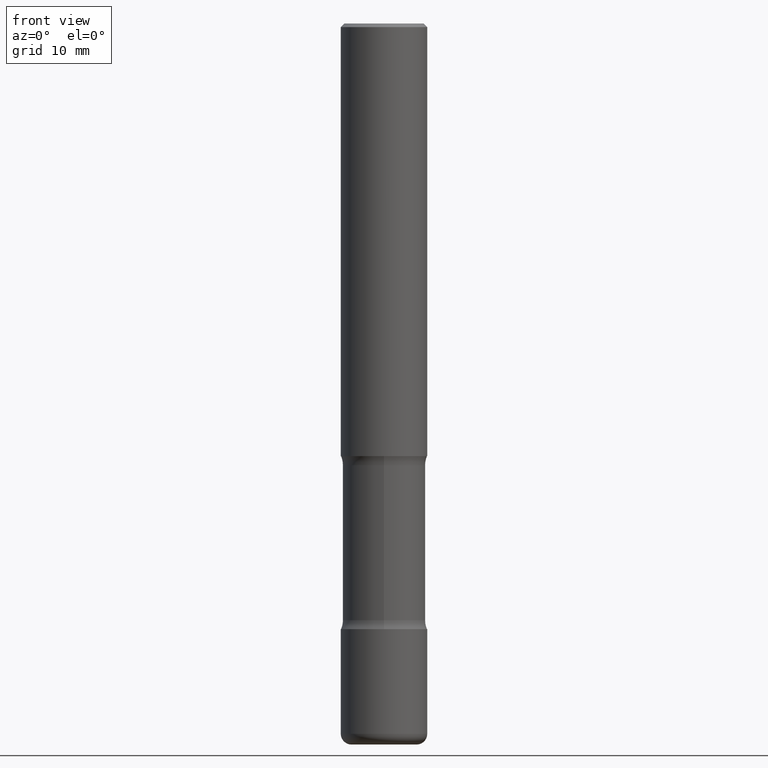
[diagram: clean part render]
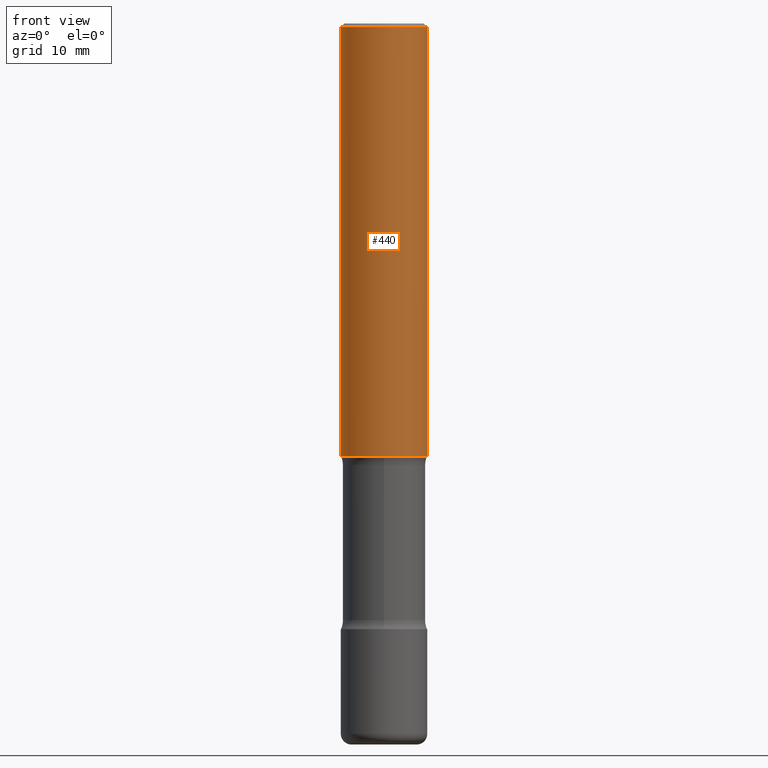
[diagram: same view with one face highlighted and labeled with its STEP entity id]
A machine part, front view. The second image highlights one B-rep face of the part: STEP entity #440.
In plain terms, the highlighted cylindrical surface (partial cylindrical patch) has radius 5.9995 mm, axis along (-0, 0, 1).
Its self-contained STEP definition (entity closure, byte-faithful):
#5 = CARTESIAN_POINT ( 'NONE',  ( 0.2361999999999999933, -1.649375784469496131E-15, 1.151752954443000088E-29 ) ) ;
#13 = EDGE_CURVE ( 'NONE', #264, #363, #218, .T. ) ;
#27 = VECTOR ( 'NONE', #36, 39.37007874015748143 ) ;
#28 = CARTESIAN_POINT ( 'NONE',  ( -0.2361999999999998545, 1.579546157692632044E-15, -0.02000000000000006981 ) ) ;
#33 = CARTESIAN_POINT ( 'NONE',  ( 0.2361999999999998545, -1.690279253850497785E-15, -0.02000000000000006981 ) ) ;
#36 = DIRECTION ( 'NONE',  ( -2.445468806185136877E-29, 3.491481338843145188E-15, 1.000000000000000000 ) ) ;
#55 = CARTESIAN_POINT ( 'NONE',  ( 4.890937612370289799E-31, -6.982962677686315028E-17, -0.02000000000000006981 ) ) ;
#92 = CARTESIAN_POINT ( 'NONE',  ( 0.2362000000000001598, -9.896953003084776152E-15, -2.362200000000000077 ) ) ;
#101 = ORIENTED_EDGE ( 'NONE', *, *, #235, .F. ) ;
#117 = ORIENTED_EDGE ( 'NONE', *, *, #496, .F. ) ;
#153 = DIRECTION ( 'NONE',  ( 1.000000000000000000, -6.982962677686268288E-15, 0.000000000000000000 ) ) ;
#165 = DIRECTION ( 'NONE',  ( 1.000000000000000000, -6.982962677686266711E-15, 4.876176775795936353E-29 ) ) ;
#169 = ORIENTED_EDGE ( 'NONE', *, *, #13, .T. ) ;
#172 = CARTESIAN_POINT ( 'NONE',  ( 0.000000000000000000, 0.000000000000000000, 0.000000000000000000 ) ) ;
#179 = DIRECTION ( 'NONE',  ( -2.445468806185136597E-29, 3.491481338843145583E-15, 1.000000000000000000 ) ) ;
#186 = DIRECTION ( 'NONE',  ( 1.000000000000000000, -6.982962677686266711E-15, 0.000000000000000000 ) ) ;
#205 = CIRCLE ( 'NONE', #522, 0.2362000000000001598 ) ;
#217 = DIRECTION ( 'NONE',  ( -2.445468806185136597E-29, 3.491481338843145583E-15, 1.000000000000000000 ) ) ;
#218 = LINE ( 'NONE', #5, #465 ) ;
#219 = FACE_OUTER_BOUND ( 'NONE', #283, .T. ) ;
#235 = EDGE_CURVE ( 'NONE', #279, #363, #533, .T. ) ;
#264 = VERTEX_POINT ( 'NONE', #92 ) ;
#279 = VERTEX_POINT ( 'NONE', #28 ) ;
#283 = EDGE_LOOP ( 'NONE', ( #117, #353, #169, #101 ) ) ;
#294 = CARTESIAN_POINT ( 'NONE',  ( -0.2361999999999999933, 1.678301941865356591E-15, -1.161852468318208757E-29 ) ) ;
#299 = AXIS2_PLACEMENT_3D ( 'NONE', #55, #179, #186 ) ;
#328 = EDGE_CURVE ( 'NONE', #529, #264, #205, .T. ) ;
#353 = ORIENTED_EDGE ( 'NONE', *, *, #328, .T. ) ;
#363 = VERTEX_POINT ( 'NONE', #33 ) ;
#375 = CARTESIAN_POINT ( 'NONE',  ( 5.776686413970529753E-29, -8.247577218615279626E-15, -2.362200000000000077 ) ) ;
#421 = LINE ( 'NONE', #294, #27 ) ;
#432 = DIRECTION ( 'NONE',  ( -2.445468806185136877E-29, 3.491481338843145188E-15, 1.000000000000000000 ) ) ;
#434 = CARTESIAN_POINT ( 'NONE',  ( -0.2362000000000001598, -2.480401480830709941E-15, -2.362200000000000077 ) ) ;
#440 = ADVANCED_FACE ( 'NONE', ( #219 ), #520, .T. ) ;
#465 = VECTOR ( 'NONE', #432, 39.37007874015748143 ) ;
#478 = AXIS2_PLACEMENT_3D ( 'NONE', #172, #217, #165 ) ;
#496 = EDGE_CURVE ( 'NONE', #529, #279, #421, .T. ) ;
#501 = DIRECTION ( 'NONE',  ( -2.445468806185136597E-29, 3.491481338843145583E-15, 1.000000000000000000 ) ) ;
#520 = CYLINDRICAL_SURFACE ( 'NONE', #478, 0.2361999999999999933 ) ;
#522 = AXIS2_PLACEMENT_3D ( 'NONE', #375, #501, #153 ) ;
#529 = VERTEX_POINT ( 'NONE', #434 ) ;
#533 = CIRCLE ( 'NONE', #299, 0.2361999999999998545 ) ;